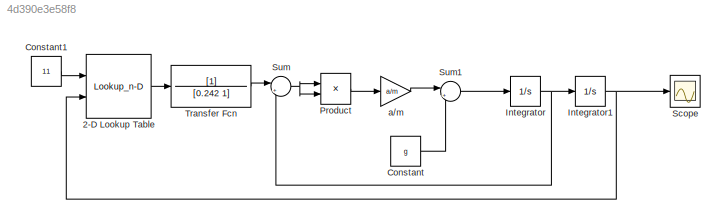
MODEL slx_4d390e3e58f8
KIND model
CONFIG AbsTol = auto
CONFIG EnableMultiTasking = off
CONFIG FixedStep = auto
CONFIG MaxStep = auto
CONFIG MinStep = auto
CONFIG RelTol = 1e-3
CONFIG SampleTimeConstraint = Unconstrained
CONFIG Solver = VariableStepAuto
CONFIG SolverName = VariableStepAuto
CONFIG StartTime = 0.0
CONFIG StopTime = 50
BLOCK [Lookup_n-D] 2-D Lookup Table
  BreakpointsForDimension1 = [4,8,12,16]
  BreakpointsForDimension2 = [0,10,20,30,40,50,60,70,80]
  InternalRulePriority = Speed
  Ports = [2, 1]
  RndMeth = Simplest
  Table = reshape([6.1,12,16.1,19.8,5.8,10.5,14.5,18,5.7,10,13,16.5,5,9,11.6,14,4.3,8,11,13,4.2,7.3,9.5,11,4,6.2,9,10,3.7,5.5,8,9,1,4.3,6.5,6.5],4,9)
BLOCK [Constant] Constant
  Value = g
BLOCK [Constant] Constant1
  Value = 11
BLOCK [Integrator] Integrator
  Ports = [1, 1]
BLOCK [Integrator] Integrator1
  InitialCondition = 0.2
  Ports = [1, 1]
BLOCK [Product] Product
  InputSameDT = off
  OutDataTypeStr = Inherit: Inherit via internal rule
  Ports = [2, 1]
  RndMeth = Floor
  SaturateOnIntegerOverflow = off
BLOCK [Scope] Scope
  NumInputPorts = 1
  Ports = [1]
  ScopeSpecificationString = Simulink.scopes.TimeScopeBlockCfg('CurrentConfiguration', extmgr.ConfigurationSet(extmgr.Configuration('Core','General UI',true),extmgr.Configuration('Core','Source UI',true),extmgr.Configuration('Sources','WiredSimulink',true),extmgr.Configuration('Visuals','Time Domain',true,'SerializedDisplays',{struct('MinYLimReal','-6.18804','MaxYLimReal','54.95792','YLabelReal','','MinYLimMag','0.00000','Max...<+1389ch>
BLOCK [Sum] Sum
  IconShape = round
  InputSameDT = off
  Inputs = |+-
  OutDataTypeStr = Inherit: Inherit via internal rule
  Ports = [2, 1]
  SaturateOnIntegerOverflow = off
BLOCK [Sum] Sum1
  IconShape = round
  InputSameDT = off
  Inputs = |+-
  OutDataTypeStr = Inherit: Inherit via internal rule
  Ports = [2, 1]
  SaturateOnIntegerOverflow = off
BLOCK [TransferFcn] Transfer Fcn
  Denominator = [0.242 1]
BLOCK [Gain] a//m
  Gain = a/m
  OutDataTypeStr = Inherit: Inherit via internal rule
  ParamDataTypeStr = Inherit: Inherit via internal rule
  SaturateOnIntegerOverflow = off
LINE 2-D Lookup Table:1 -> Transfer Fcn:1
LINE Constant1:1 -> 2-D Lookup Table:1
LINE Constant:1 -> Sum1:2
NET Integrator1:1 -> 2-D Lookup Table:2, Scope:1
NET Integrator:1 -> Integrator1:1, Sum:2
LINE Product:1 -> a//m:1
LINE Sum1:1 -> Integrator:1
NET Sum:1 -> Product:1, Product:2
LINE Transfer Fcn:1 -> Sum:1
LINE a//m:1 -> Sum1:1
note: NET lines group one-source signal fan-out (src -> all destinations, sorted); 1:1 wires keep LINE
